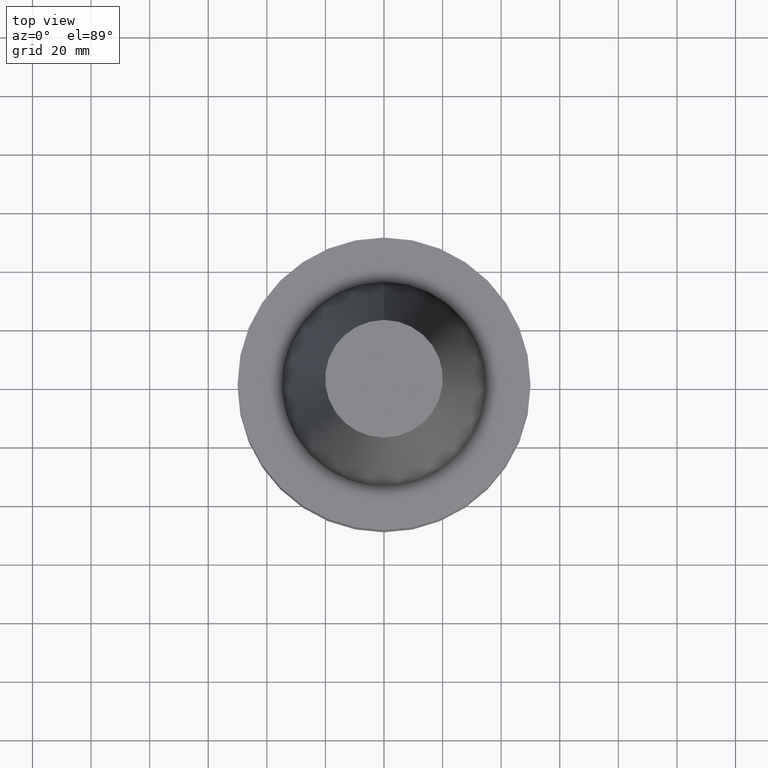
[diagram: clean part render]
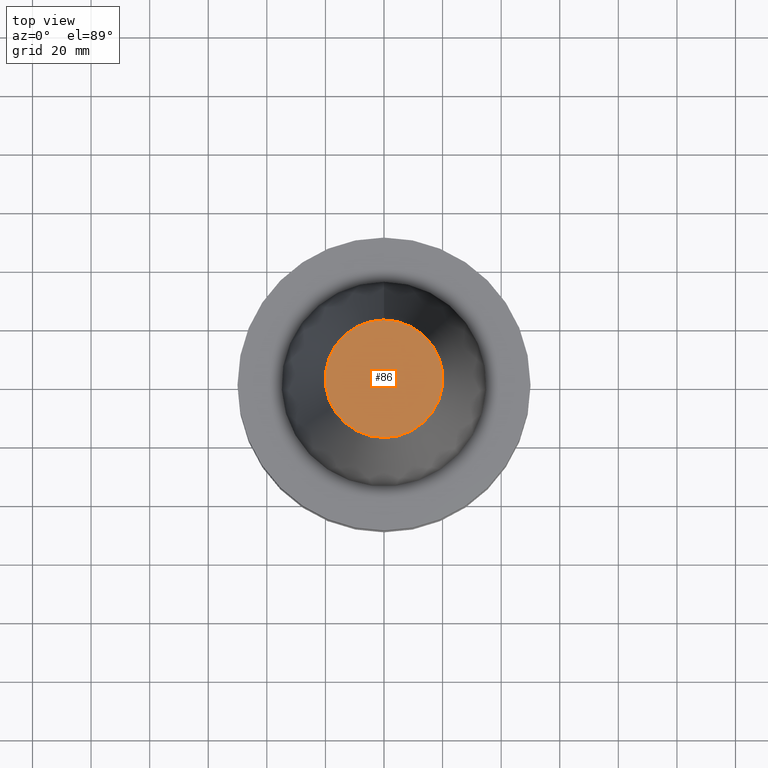
[diagram: same view with one face highlighted and labeled with its STEP entity id]
A machine part, top view. The second image highlights one B-rep face of the part: STEP entity #86.
In plain terms, the highlighted planar face has unit normal (-0, -0, 1).
Its self-contained STEP definition (entity closure, byte-faithful):
#86=ADVANCED_FACE('Unnamed[1]',(#223),#224,.T.);
#113=EDGE_CURVE('Unnamed[1]',#267,#267,#268,.T.);
#223=FACE_OUTER_BOUND('',#411,.T.);
#224=PLANE('',#412);
#267=VERTEX_POINT('',#465);
#268=CIRCLE('',#466,20.0791666651884);
#411=EDGE_LOOP('',(#623));
#412=AXIS2_PLACEMENT_3D('',#624,#625,#626);
#465=CARTESIAN_POINT('',(-6.23345220766003E-015,20.0791666651884,101.8));
#466=AXIS2_PLACEMENT_3D('',#675,#676,#677);
#623=ORIENTED_EDGE('',*,*,#113,.F.);
#624=CARTESIAN_POINT('',(-6.23345220766003E-015,10.0395833325942,101.8));
#625=DIRECTION('',(-6.12323399573677E-017,-1.22464679914735E-016,1.0));
#626=DIRECTION('',(1.23259516440783E-032,-1.0,-1.22464679914735E-016));
#675=CARTESIAN_POINT('',(-6.23345220766003E-015,-1.24669044153201E-014,101.8));
#676=DIRECTION('',(6.12323399573677E-017,1.22464679914713E-016,-1.0));
#677=DIRECTION('',(-1.23259516440767E-032,1.0,1.22464679914713E-016));